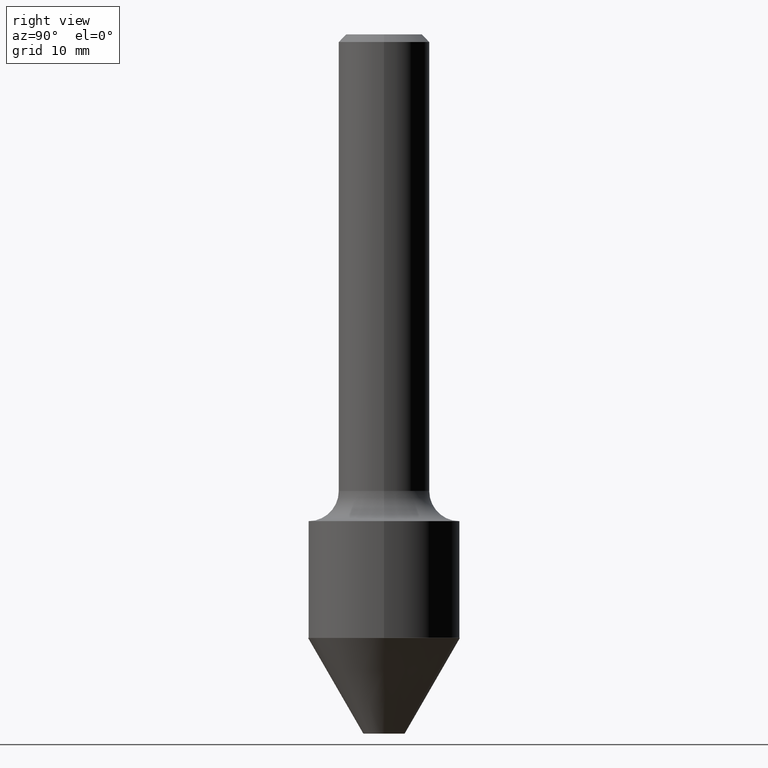
[diagram: clean part render]
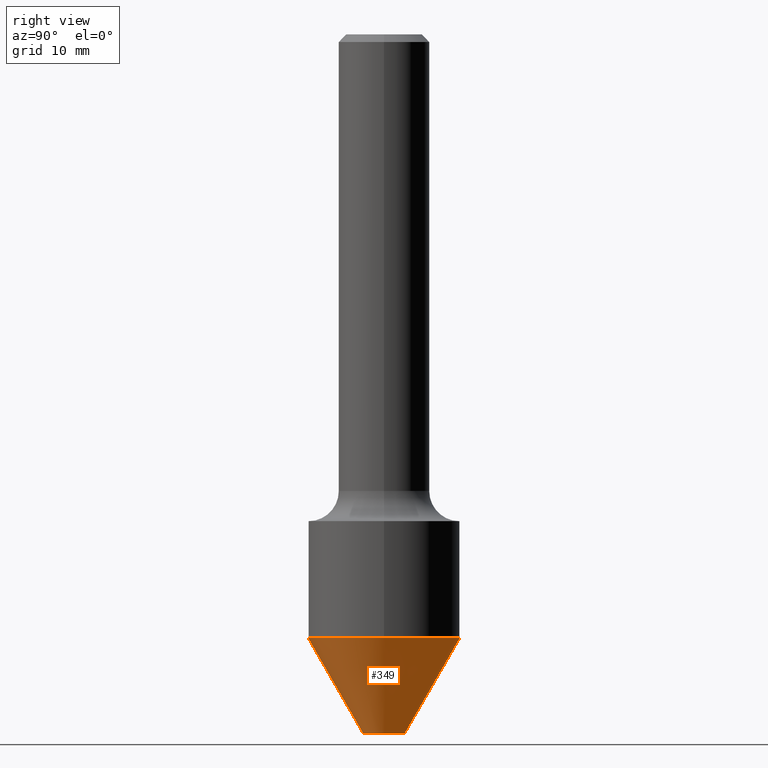
[diagram: same view with one face highlighted and labeled with its STEP entity id]
A machine part, right view. The second image highlights one B-rep face of the part: STEP entity #349.
In plain terms, the highlighted conical surface has half-angle 30 deg.
Its self-contained STEP definition (entity closure, byte-faithful):
#17 = LINE ( 'NONE', #339, #382 ) ;
#30 = VERTEX_POINT ( 'NONE', #113 ) ;
#33 = CARTESIAN_POINT ( 'NONE',  ( 1.412203687323261313E-15, 0.08499999999998972267, -2.880000000000000782 ) ) ;
#34 = EDGE_LOOP ( 'NONE', ( #383, #136, #350, #404 ) ) ;
#36 = CARTESIAN_POINT ( 'NONE',  ( 2.220446049250371062E-15, 0.3124999999999909517, -2.485958441278118158 ) ) ;
#77 = DIRECTION ( 'NONE',  ( -6.982962677686265133E-15, -1.000000000000000000, 3.496765431890260469E-15 ) ) ;
#81 = VECTOR ( 'NONE', #435, 39.37007874015748854 ) ;
#113 = CARTESIAN_POINT ( 'NONE',  ( -5.935518276032604305E-16, -0.08500000000000980382, -2.879999999999999893 ) ) ;
#119 = CARTESIAN_POINT ( 'NONE',  ( 6.052675718444882355E-29, -8.717853427891421761E-15, -2.485958441278116826 ) ) ;
#136 = ORIENTED_EDGE ( 'NONE', *, *, #428, .T. ) ;
#153 = EDGE_CURVE ( 'NONE', #30, #392, #17, .T. ) ;
#154 = DIRECTION ( 'NONE',  ( -2.537671712382247930E-29, 3.359441529305366298E-15, 1.000000000000000000 ) ) ;
#175 = CIRCLE ( 'NONE', #318, 0.08499999999999975631 ) ;
#195 = DIRECTION ( 'NONE',  ( -2.537671712382247930E-29, 3.359441529305366298E-15, 1.000000000000000000 ) ) ;
#216 = VERTEX_POINT ( 'NONE', #33 ) ;
#244 = AXIS2_PLACEMENT_3D ( 'NONE', #119, #446, #77 ) ;
#246 = CONICAL_SURFACE ( 'NONE', #244, 0.3124999999999996669, 0.5235987755983383396 ) ;
#249 = DIRECTION ( 'NONE',  ( -6.982962677686265133E-15, -1.000000000000000000, 3.496765431890260469E-15 ) ) ;
#258 = CARTESIAN_POINT ( 'NONE',  ( -2.182175836776895238E-15, -0.3125000000000084377, -2.485958441278115938 ) ) ;
#286 = CIRCLE ( 'NONE', #393, 0.3124999999999996669 ) ;
#318 = AXIS2_PLACEMENT_3D ( 'NONE', #356, #154, #407 ) ;
#337 = EDGE_CURVE ( 'NONE', #30, #216, #175, .T. ) ;
#339 = CARTESIAN_POINT ( 'NONE',  ( -2.182175836776895238E-15, -0.3125000000000084377, -2.485958441278115938 ) ) ;
#341 = EDGE_CURVE ( 'NONE', #392, #397, #286, .T. ) ;
#349 = ADVANCED_FACE ( 'NONE', ( #360 ), #246, .T. ) ;
#350 = ORIENTED_EDGE ( 'NONE', *, *, #341, .F. ) ;
#356 = CARTESIAN_POINT ( 'NONE',  ( 7.052623835516415266E-29, -1.004161300453393599E-14, -2.880000000000000338 ) ) ;
#360 = FACE_OUTER_BOUND ( 'NONE', #34, .T. ) ;
#379 = DIRECTION ( 'NONE',  ( -3.491481338843393285E-15, -0.5000000000000313083, 0.8660254037844206110 ) ) ;
#382 = VECTOR ( 'NONE', #379, 39.37007874015748143 ) ;
#383 = ORIENTED_EDGE ( 'NONE', *, *, #337, .T. ) ;
#392 = VERTEX_POINT ( 'NONE', #258 ) ;
#393 = AXIS2_PLACEMENT_3D ( 'NONE', #403, #195, #249 ) ;
#395 = LINE ( 'NONE', #36, #81 ) ;
#397 = VERTEX_POINT ( 'NONE', #398 ) ;
#398 = CARTESIAN_POINT ( 'NONE',  ( 2.220446049250371062E-15, 0.3124999999999909517, -2.485958441278118158 ) ) ;
#403 = CARTESIAN_POINT ( 'NONE',  ( 6.052675718444882355E-29, -8.717853427891421761E-15, -2.485958441278116826 ) ) ;
#404 = ORIENTED_EDGE ( 'NONE', *, *, #153, .F. ) ;
#407 = DIRECTION ( 'NONE',  ( -6.982962677686265922E-15, -1.000000000000000000, 6.427877632151226320E-15 ) ) ;
#428 = EDGE_CURVE ( 'NONE', #216, #397, #395, .T. ) ;
#435 = DIRECTION ( 'NONE',  ( 3.552713678800720233E-15, 0.5000000000000369704, 0.8660254037844171693 ) ) ;
#446 = DIRECTION ( 'NONE',  ( -2.537671712382247930E-29, 3.359441529305366298E-15, 1.000000000000000000 ) ) ;